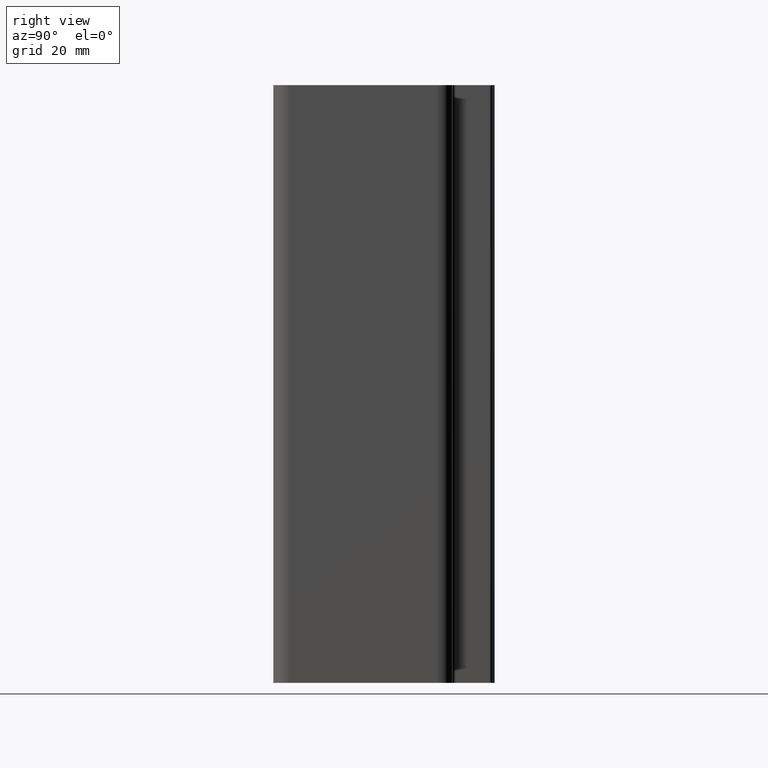
[diagram: clean part render]
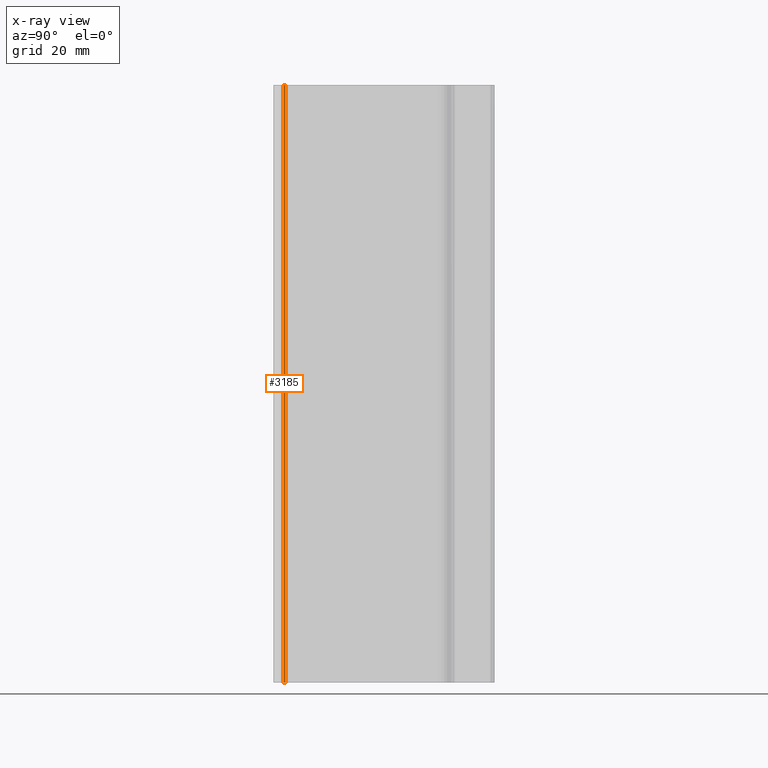
[diagram: x-ray — body ghosted, one internal face saturated and labeled with its STEP entity id]
A machine part, right view, then the same camera in x-ray: the body is ghosted and one INTERNAL B-rep face — a face not visible from any outside direction — is saturated and labeled: STEP entity #3185.
In plain terms, the highlighted planar face has unit normal (1, 0, 0).
Its self-contained STEP definition (entity closure, byte-faithful):
#758=CARTESIAN_POINT('',(7.511985819743994,1.680890048491576,100.0));
#759=VERTEX_POINT('',#758);
#766=CARTESIAN_POINT('',(7.511985819743994,1.980890048491544,100.0));
#767=VERTEX_POINT('',#766);
#768=CARTESIAN_POINT('',(7.511985819743994,1.980890048491544,100.0));
#769=DIRECTION('',(0.0,-1.0,0.0));
#770=VECTOR('',#769,0.299999999999968);
#771=LINE('',#768,#770);
#772=EDGE_CURVE('',#767,#759,#771,.T.);
#1573=CARTESIAN_POINT('',(7.511985819743994,1.980890048491544,0.0));
#1574=VERTEX_POINT('',#1573);
#1581=CARTESIAN_POINT('',(7.511985819743994,1.680890048491576,0.0));
#1582=VERTEX_POINT('',#1581);
#1583=CARTESIAN_POINT('',(7.511985819743994,1.980890048491544,0.0));
#1584=DIRECTION('',(0.0,-1.0,0.0));
#1585=VECTOR('',#1584,0.299999999999968);
#1586=LINE('',#1583,#1585);
#1587=EDGE_CURVE('',#1574,#1582,#1586,.T.);
#3160=CARTESIAN_POINT('',(7.511985819743994,1.980890048491544,100.0));
#3161=DIRECTION('',(0.0,0.0,-1.0));
#3162=VECTOR('',#3161,100.0);
#3163=LINE('',#3160,#3162);
#3164=EDGE_CURVE('',#767,#1574,#3163,.T.);
#3169=CARTESIAN_POINT('',(7.511985819743994,1.665890048491578,105.0));
#3170=DIRECTION('',(1.0,0.0,0.0));
#3171=DIRECTION('',(0.0,0.0,-1.0));
#3172=AXIS2_PLACEMENT_3D('',#3169,#3170,#3171);
#3173=PLANE('',#3172);
#3174=ORIENTED_EDGE('',*,*,#1587,.F.);
#3175=ORIENTED_EDGE('',*,*,#3164,.F.);
#3176=ORIENTED_EDGE('',*,*,#772,.T.);
#3177=CARTESIAN_POINT('',(7.511985819743994,1.680890048491576,100.0));
#3178=DIRECTION('',(0.0,0.0,-1.0));
#3179=VECTOR('',#3178,100.0);
#3180=LINE('',#3177,#3179);
#3181=EDGE_CURVE('',#759,#1582,#3180,.T.);
#3182=ORIENTED_EDGE('',*,*,#3181,.T.);
#3183=EDGE_LOOP('',(#3174,#3175,#3176,#3182));
#3184=FACE_OUTER_BOUND('',#3183,.T.);
#3185=ADVANCED_FACE('',(#3184),#3173,.T.);